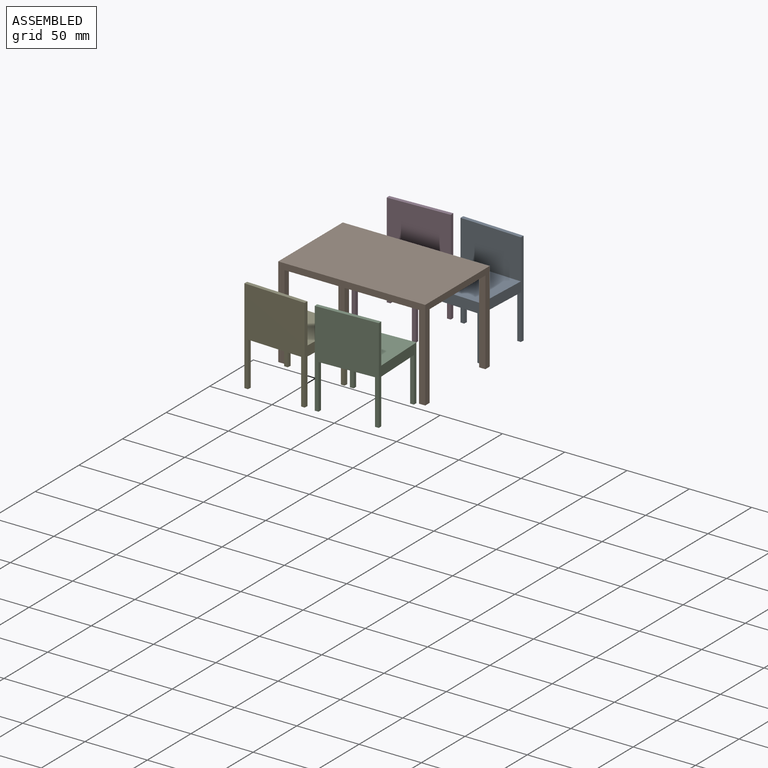
[diagram: assembled view]
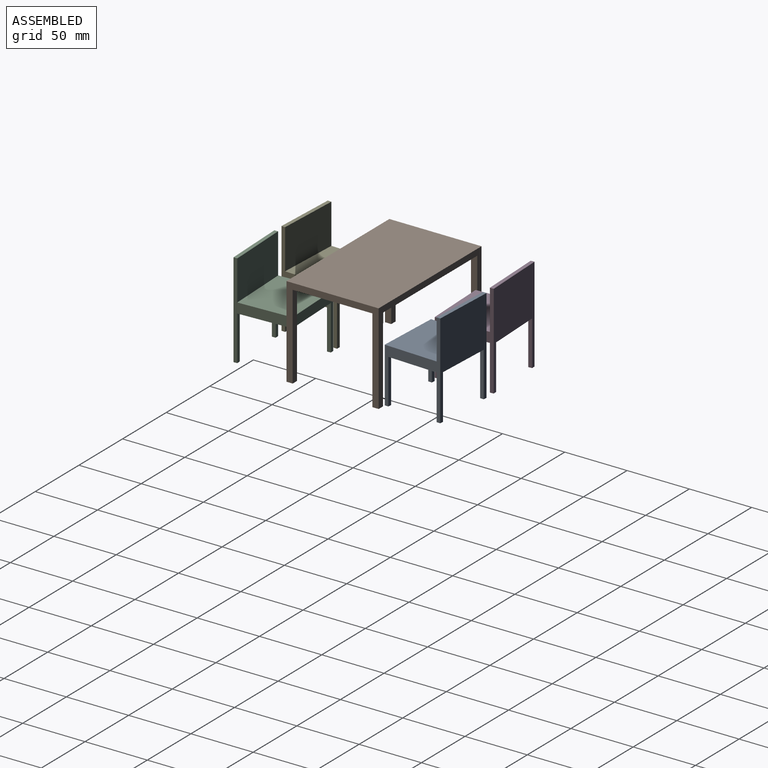
[diagram: assembled view, second angle]
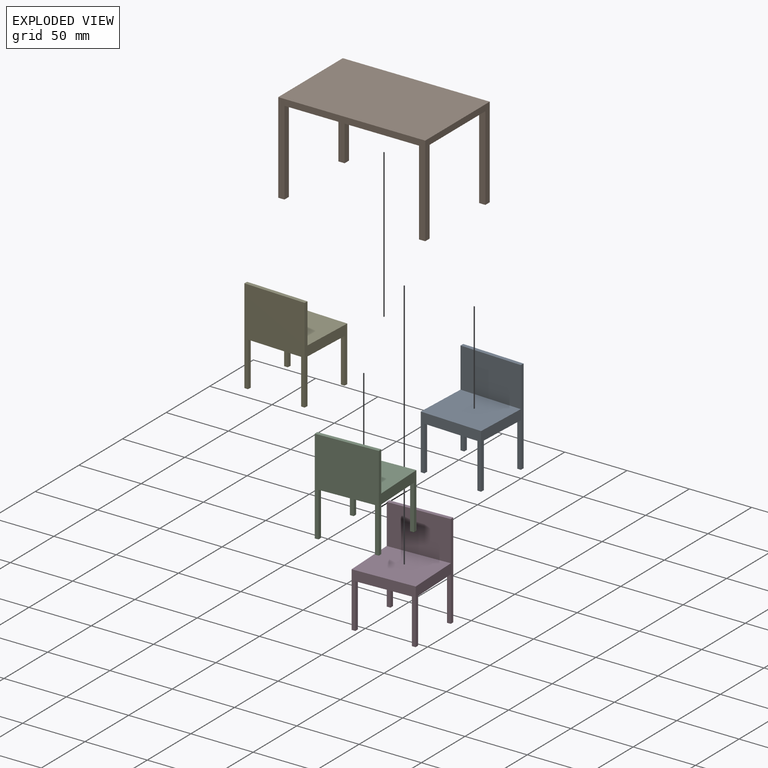
[diagram: exploded view]
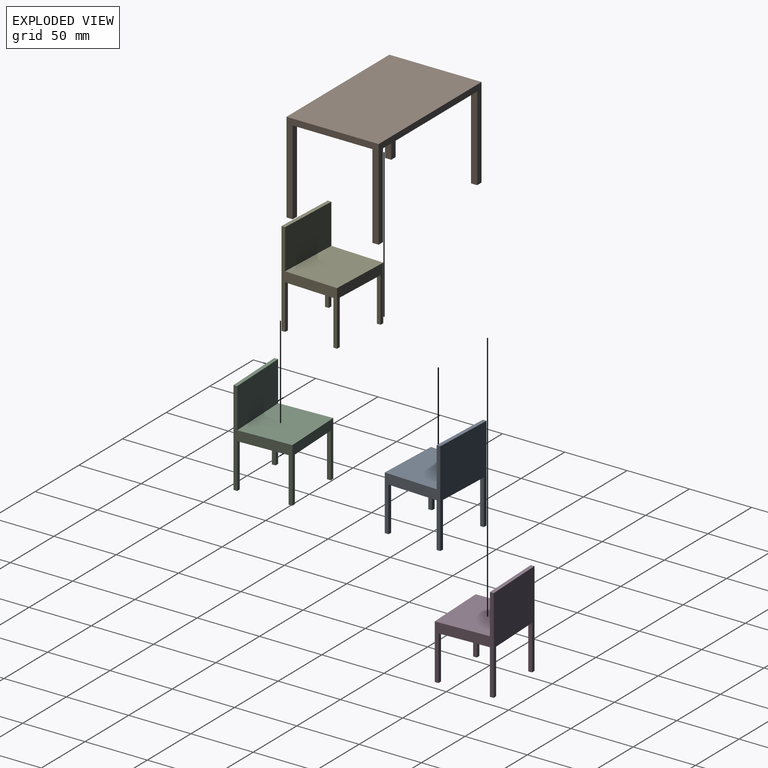
[diagram: exploded view, second angle]
ASSEMBLY  parts=5 mates=4
PART A: 20 faces, bbox 50x46x76 mm
  f0: plane 3x3mm, normal (0,0,-1), area 9mm2, adj f2,f6,f15,f19
  f1: plane 3x3mm, normal (0,0,-1), area 9mm2, adj f3,f4,f15,f16
  f2: plane 36x3mm, normal (0,-1,0), area 108mm2, adj f0,f9,f15,f19
  f3: plane 36x3mm, normal (0,1,0), area 108mm2, adj f1,f9,f15,f16
  f4: plane 50x44mm, normal (0,-1,0), area 616mm2, adj f1,f9,f11,f12,f14,f15,f16,f17
  f5: plane 50x3mm, normal (0,0,1), area 150mm2, adj f6,f13,f14,f15
  f6: plane 76x50mm, normal (0,1,0), area 2216mm2, adj f0,f5,f7,f9,f14,f15,f18,f19
  f7: plane 3x3mm, normal (0,0,-1), area 9mm2, adj f6,f8,f14,f18
  f8: plane 36x3mm, normal (0,-1,0), area 108mm2, adj f7,f9,f14,f18
  f9: plane 50x46mm, normal (0,0,-1), area 2264mm2, adj f2,f3,f4,f6,f8,f10,f14,f15
  f10: plane 36x3mm, normal (0,1,0), area 108mm2, adj f9,f11,f14,f17
  f11: plane 3x3mm, normal (0,0,-1), area 9mm2, adj f4,f10,f14,f17
  f12: plane 50x43mm, normal (0,0,1), area 2150mm2, adj f4,f13,f14,f15
  f13: plane 50x32mm, normal (0,-1,0), area 1600mm2, adj f5,f12,f14,f15
  f14: plane 76x46mm, normal (1,0,0), area 680mm2, adj f4,f5,f6,f7,f8,f9,f10,f11
  f15: plane 76x46mm, normal (-1,0,0), area 680mm2, adj f0,f1,f2,f3,f4,f5,f6,f9
  f16: plane 36x3mm, normal (1,0,0), area 108mm2, adj f1,f3,f4,f9
  f17: plane 36x3mm, normal (-1,0,0), area 108mm2, adj f4,f9,f10,f11
  f18: plane 36x3mm, normal (-1,0,0), area 108mm2, adj f6,f7,f8,f9
  f19: plane 36x3mm, normal (1,0,0), area 108mm2, adj f0,f2,f6,f9
PART B: 18 faces, bbox 118x74x73 mm
  f0: plane 118x74mm, normal (0,0,-1), area 8632mm2, adj f1,f2,f3,f4,f6,f7,f9,f10
  f1: plane 118x73mm, normal (0,-1,0), area 1270mm2, adj f0,f2,f4,f5,f7,f8,f13,f14
  f2: plane 74x73mm, normal (1,0,0), area 1050mm2, adj f0,f1,f3,f5,f6,f8,f10,f11
  f3: plane 118x73mm, normal (0,1,0), area 1270mm2, adj f0,f2,f4,f5,f9,f11,f15,f17
  f4: plane 74x73mm, normal (-1,0,0), area 1050mm2, adj f0,f1,f3,f5,f12,f14,f16,f17
  f5: plane 118x74mm, normal (0,0,1), area 8732mm2, adj f1,f2,f3,f4
  f6: plane 68x5mm, normal (0,1,0), area 340mm2, adj f0,f2,f7,f8
  f7: plane 68x5mm, normal (-1,0,0), area 340mm2, adj f0,f1,f6,f8
  f8: plane 5x5mm, normal (0,0,-1), area 25mm2, adj f1,f2,f6,f7
  f9: plane 68x5mm, normal (-1,0,0), area 340mm2, adj f0,f3,f10,f11
  f10: plane 68x5mm, normal (0,-1,0), area 340mm2, adj f0,f2,f9,f11
  f11: plane 5x5mm, normal (0,0,-1), area 25mm2, adj f2,f3,f9,f10
  f12: plane 68x5mm, normal (0,1,0), area 340mm2, adj f0,f4,f13,f14
  f13: plane 68x5mm, normal (1,0,0), area 340mm2, adj f0,f1,f12,f14
  f14: plane 5x5mm, normal (0,0,-1), area 25mm2, adj f1,f4,f12,f13
  f15: plane 68x5mm, normal (1,0,0), area 340mm2, adj f0,f3,f16,f17
  f16: plane 68x5mm, normal (0,-1,0), area 340mm2, adj f0,f4,f15,f17
  f17: plane 5x5mm, normal (0,0,-1), area 25mm2, adj f3,f4,f15,f16
PART C: 20 faces, bbox 46x50x76 mm
  f0: plane 3x3mm, normal (0,0,-1), area 9mm2, adj f2,f6,f15,f19
  f1: plane 3x3mm, normal (0,0,-1), area 9mm2, adj f3,f4,f15,f16
  f2: plane 36x3mm, normal (-1,0,0), area 108mm2, adj f0,f9,f15,f19
  f3: plane 36x3mm, normal (1,0,0), area 108mm2, adj f1,f9,f15,f16
  f4: plane 50x44mm, normal (-1,0,0), area 616mm2, adj f1,f9,f11,f12,f14,f15,f16,f17
  f5: plane 50x3mm, normal (0,0,1), area 150mm2, adj f6,f13,f14,f15
  f6: plane 76x50mm, normal (1,0,0), area 2216mm2, adj f0,f5,f7,f9,f14,f15,f18,f19
  f7: plane 3x3mm, normal (0,0,-1), area 9mm2, adj f6,f8,f14,f18
  f8: plane 36x3mm, normal (-1,0,0), area 108mm2, adj f7,f9,f14,f18
  f9: plane 50x46mm, normal (0,0,-1), area 2264mm2, adj f2,f3,f4,f6,f8,f10,f14,f15
  f10: plane 36x3mm, normal (1,0,0), area 108mm2, adj f9,f11,f14,f17
  f11: plane 3x3mm, normal (0,0,-1), area 9mm2, adj f4,f10,f14,f17
  f12: plane 50x43mm, normal (0,0,1), area 2150mm2, adj f4,f13,f14,f15
  f13: plane 50x32mm, normal (-1,0,0), area 1600mm2, adj f5,f12,f14,f15
  f14: plane 76x46mm, normal (0,1,0), area 680mm2, adj f4,f5,f6,f7,f8,f9,f10,f11
  f15: plane 76x46mm, normal (0,-1,0), area 680mm2, adj f0,f1,f2,f3,f4,f5,f6,f9
  f16: plane 36x3mm, normal (0,1,0), area 108mm2, adj f1,f3,f4,f9
  f17: plane 36x3mm, normal (0,-1,0), area 108mm2, adj f4,f9,f10,f11
  f18: plane 36x3mm, normal (0,-1,0), area 108mm2, adj f6,f7,f8,f9
  f19: plane 36x3mm, normal (0,1,0), area 108mm2, adj f0,f2,f6,f9
PART D: 20 faces, bbox 46x50x76 mm
  f0: plane 3x3mm, normal (0,0,-1), area 9mm2, adj f2,f6,f15,f19
  f1: plane 3x3mm, normal (0,0,-1), area 9mm2, adj f3,f4,f15,f16
  f2: plane 36x3mm, normal (1,0,0), area 108mm2, adj f0,f9,f15,f19
  f3: plane 36x3mm, normal (-1,0,0), area 108mm2, adj f1,f9,f15,f16
  f4: plane 50x44mm, normal (1,0,0), area 616mm2, adj f1,f9,f11,f12,f14,f15,f16,f17
  f5: plane 50x3mm, normal (0,0,1), area 150mm2, adj f6,f13,f14,f15
  f6: plane 76x50mm, normal (-1,0,0), area 2216mm2, adj f0,f5,f7,f9,f14,f15,f18,f19
  f7: plane 3x3mm, normal (0,0,-1), area 9mm2, adj f6,f8,f14,f18
  f8: plane 36x3mm, normal (1,0,0), area 108mm2, adj f7,f9,f14,f18
  f9: plane 50x46mm, normal (0,0,-1), area 2264mm2, adj f2,f3,f4,f6,f8,f10,f14,f15
  f10: plane 36x3mm, normal (-1,0,0), area 108mm2, adj f9,f11,f14,f17
  f11: plane 3x3mm, normal (0,0,-1), area 9mm2, adj f4,f10,f14,f17
  f12: plane 50x43mm, normal (0,0,1), area 2150mm2, adj f4,f13,f14,f15
  f13: plane 50x32mm, normal (1,0,0), area 1600mm2, adj f5,f12,f14,f15
  f14: plane 76x46mm, normal (0,1,0), area 680mm2, adj f4,f5,f6,f7,f8,f9,f10,f11
  f15: plane 76x46mm, normal (0,-1,0), area 680mm2, adj f0,f1,f2,f3,f4,f5,f6,f9
  f16: plane 36x3mm, normal (0,1,0), area 108mm2, adj f1,f3,f4,f9
  f17: plane 36x3mm, normal (0,-1,0), area 108mm2, adj f4,f9,f10,f11
  f18: plane 36x3mm, normal (0,-1,0), area 108mm2, adj f6,f7,f8,f9
  f19: plane 36x3mm, normal (0,1,0), area 108mm2, adj f0,f2,f6,f9
PART E: 20 faces, bbox 50x46x76 mm
  f0: plane 3x3mm, normal (0,0,-1), area 9mm2, adj f2,f6,f15,f19
  f1: plane 3x3mm, normal (0,0,-1), area 9mm2, adj f3,f4,f15,f16
  f2: plane 36x3mm, normal (0,1,0), area 108mm2, adj f0,f9,f15,f19
  f3: plane 36x3mm, normal (0,-1,0), area 108mm2, adj f1,f9,f15,f16
  f4: plane 50x44mm, normal (0,1,0), area 616mm2, adj f1,f9,f11,f12,f14,f15,f16,f17
  f5: plane 50x3mm, normal (0,0,1), area 150mm2, adj f6,f13,f14,f15
  f6: plane 76x50mm, normal (0,-1,0), area 2216mm2, adj f0,f5,f7,f9,f14,f15,f18,f19
  f7: plane 3x3mm, normal (0,0,-1), area 9mm2, adj f6,f8,f14,f18
  f8: plane 36x3mm, normal (0,1,0), area 108mm2, adj f7,f9,f14,f18
  f9: plane 50x46mm, normal (0,0,-1), area 2264mm2, adj f2,f3,f4,f6,f8,f10,f14,f15
  f10: plane 36x3mm, normal (0,-1,0), area 108mm2, adj f9,f11,f14,f17
  f11: plane 3x3mm, normal (0,0,-1), area 9mm2, adj f4,f10,f14,f17
  f12: plane 50x43mm, normal (0,0,1), area 2150mm2, adj f4,f13,f14,f15
  f13: plane 50x32mm, normal (0,1,0), area 1600mm2, adj f5,f12,f14,f15
  f14: plane 76x46mm, normal (1,0,0), area 680mm2, adj f4,f5,f6,f7,f8,f9,f10,f11
  f15: plane 76x46mm, normal (-1,0,0), area 680mm2, adj f0,f1,f2,f3,f4,f5,f6,f9
  f16: plane 36x3mm, normal (1,0,0), area 108mm2, adj f1,f3,f4,f9
  f17: plane 36x3mm, normal (-1,0,0), area 108mm2, adj f4,f9,f10,f11
  f18: plane 36x3mm, normal (-1,0,0), area 108mm2, adj f6,f7,f8,f9
  f19: plane 36x3mm, normal (1,0,0), area 108mm2, adj f0,f2,f6,f9
PLACE A rot(axis=(0,0,-1),2.5deg) t=(26.15,18.11,0)mm
PLACE B at identity fixed
PLACE C rot(axis=(0,0,-1),87.5deg) t=(-68.8,-44.36,0)mm
PLACE D rot(axis=(0,0,-1),87.5deg) t=(-121.1,-7.97,0)mm
PLACE E rot(axis=(0,0,-1),2.5deg) t=(-26.15,-18.11,0)mm
MATE planar A.f11 <-> B.f11  axis (0,0,-1) through (52,37,0)mm
MATE planar B.f8 <-> C.f11  axis (0,0,-1) through (54,-37,0)mm
MATE planar E.f1 <-> B.f14  axis (0,0,-1) through (-52,-37,0)mm
MATE planar B.f17 <-> D.f1  axis (0,0,-1) through (-54,37,0)mm
